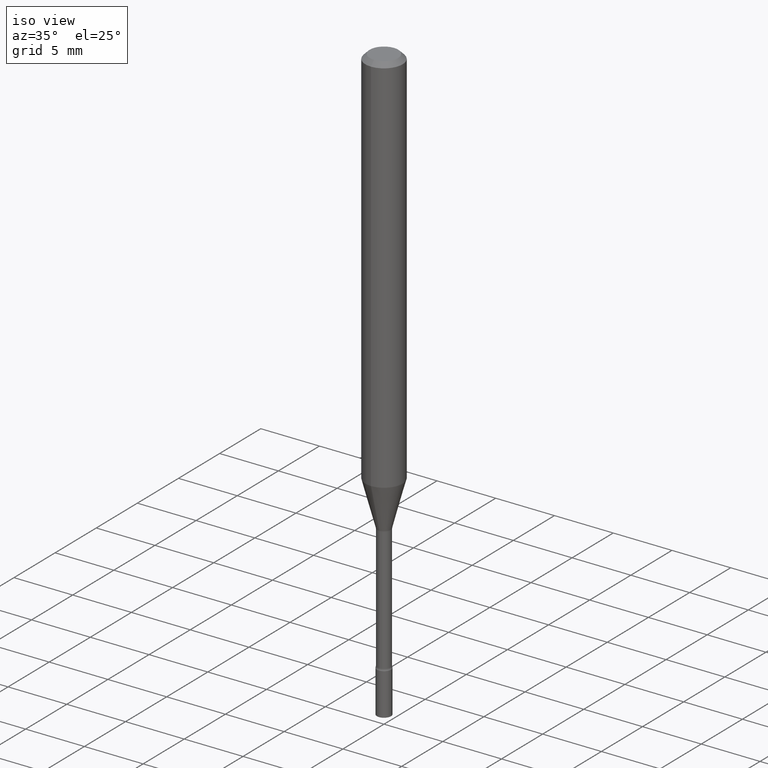
[diagram: clean part render]
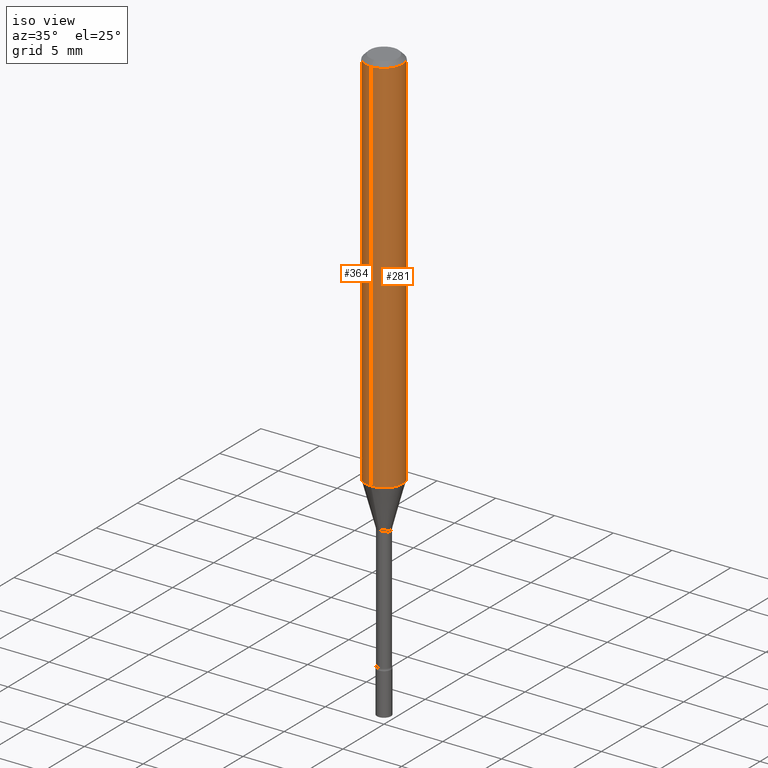
[diagram: same view with one multi-face feature highlighted, each face labeled with its STEP entity id]
A machine part, iso view. The highlighted faces form ONE feature: a constant-radius fillet chain: 2 tangent blend faces with common blend radius 1.5875 mm. The faces share edges in the B-rep.
Their STEP definitions:
[1] entity #281 (Cylinder):
#13 = DIRECTION ( 'NONE',  ( -2.445449293867179508E-29, 3.491509281593031965E-15, 1.000000000000000000 ) ) ;
#17 = DIRECTION ( 'NONE',  ( -2.445449293867179788E-29, 3.491509281593031965E-15, 1.000000000000000000 ) ) ;
#23 = ORIENTED_EDGE ( 'NONE', *, *, #407, .F. ) ;
#25 = DIRECTION ( 'NONE',  ( -6.982962677686265922E-15, -1.000000000000000000, 4.370956789862821150E-15 ) ) ;
#26 = DIRECTION ( 'NONE',  ( -6.982962677686265922E-15, -1.000000000000000000, 3.491509281593031965E-15 ) ) ;
#32 = DIRECTION ( 'NONE',  ( -2.445449293867179508E-29, 3.491509281593031965E-15, 1.000000000000000000 ) ) ;
#38 = VECTOR ( 'NONE', #13, 39.37007874015748143 ) ;
#45 = EDGE_CURVE ( 'NONE', #340, #299, #195, .T. ) ;
#59 = EDGE_CURVE ( 'NONE', #345, #340, #73, .T. ) ;
#60 = EDGE_CURVE ( 'NONE', #345, #390, #307, .T. ) ;
#71 = ORIENTED_EDGE ( 'NONE', *, *, #59, .T. ) ;
#73 = CIRCLE ( 'NONE', #426, 0.06250000000000000000 ) ;
#83 = DIRECTION ( 'NONE',  ( -2.445449293867179788E-29, 3.491509281593031965E-15, 1.000000000000000000 ) ) ;
#89 = DIRECTION ( 'NONE',  ( -2.445449293867179788E-29, 3.491509281593031965E-15, 1.000000000000000000 ) ) ;
#107 = ORIENTED_EDGE ( 'NONE', *, *, #45, .T. ) ;
#118 = CARTESIAN_POINT ( 'NONE',  ( -4.364351673553916201E-16, -0.06250000000000000000, 2.182193300995644978E-16 ) ) ;
#132 = CARTESIAN_POINT ( 'NONE',  ( 4.440892098500937762E-16, 0.06249999999999548278, -1.285225147374218224 ) ) ;
#137 = FACE_OUTER_BOUND ( 'NONE', #442, .T. ) ;
#168 = AXIS2_PLACEMENT_3D ( 'NONE', #502, #17, #26 ) ;
#179 = CARTESIAN_POINT ( 'NONE',  ( -4.364351673553912750E-16, -0.06250000000000005551, -0.01499999999999981209 ) ) ;
#195 = LINE ( 'NONE', #389, #494 ) ;
#203 = CARTESIAN_POINT ( 'NONE',  ( 3.142952929106623298E-29, -4.487375530993854275E-15, -1.285225147374218002 ) ) ;
#209 = CIRCLE ( 'NONE', #282, 0.06250000000000000000 ) ;
#214 = ORIENTED_EDGE ( 'NONE', *, *, #60, .F. ) ;
#252 = DIRECTION ( 'NONE',  ( -6.982962677686265922E-15, -1.000000000000000000, 3.483106191921935554E-15 ) ) ;
#281 = ADVANCED_FACE ( 'NONE', ( #137 ), #332, .T. ) ;
#282 = AXIS2_PLACEMENT_3D ( 'NONE', #508, #89, #252 ) ;
#299 = VERTEX_POINT ( 'NONE', #499 ) ;
#307 = LINE ( 'NONE', #118, #38 ) ;
#332 = CYLINDRICAL_SURFACE ( 'NONE', #168, 0.06250000000000000000 ) ;
#340 = VERTEX_POINT ( 'NONE', #132 ) ;
#345 = VERTEX_POINT ( 'NONE', #380 ) ;
#380 = CARTESIAN_POINT ( 'NONE',  ( -4.364351673553603615E-16, -0.06250000000000451028, -1.285225147374217780 ) ) ;
#389 = CARTESIAN_POINT ( 'NONE',  ( 4.440892098500625669E-16, 0.06250000000000000000, -2.182193300995644978E-16 ) ) ;
#390 = VERTEX_POINT ( 'NONE', #179 ) ;
#407 = EDGE_CURVE ( 'NONE', #390, #299, #209, .T. ) ;
#426 = AXIS2_PLACEMENT_3D ( 'NONE', #203, #83, #25 ) ;
#442 = EDGE_LOOP ( 'NONE', ( #71, #107, #23, #214 ) ) ;
#494 = VECTOR ( 'NONE', #32, 39.37007874015748143 ) ;
#499 = CARTESIAN_POINT ( 'NONE',  ( 4.440892098500941706E-16, 0.06249999999999995143, -0.01500000000000024751 ) ) ;
#502 = CARTESIAN_POINT ( 'NONE',  ( 0.000000000000000000, 0.000000000000000000, 0.000000000000000000 ) ) ;
#508 = CARTESIAN_POINT ( 'NONE',  ( 3.668173940800776741E-31, -5.237263922389558597E-17, -0.01500000000000003067 ) ) ;
[2] entity #364 (Cylinder):
#13 = DIRECTION ( 'NONE',  ( -2.445449293867179508E-29, 3.491509281593031965E-15, 1.000000000000000000 ) ) ;
#21 = DIRECTION ( 'NONE',  ( -6.982962677686265922E-15, -1.000000000000000000, 4.370956789862821150E-15 ) ) ;
#22 = DIRECTION ( 'NONE',  ( -6.982962677686265922E-15, -1.000000000000000000, 3.491509281593031965E-15 ) ) ;
#32 = DIRECTION ( 'NONE',  ( -2.445449293867179508E-29, 3.491509281593031965E-15, 1.000000000000000000 ) ) ;
#38 = VECTOR ( 'NONE', #13, 39.37007874015748143 ) ;
#45 = EDGE_CURVE ( 'NONE', #340, #299, #195, .T. ) ;
#47 = CARTESIAN_POINT ( 'NONE',  ( 3.668173940800776741E-31, -5.237263922389558597E-17, -0.01500000000000003067 ) ) ;
#48 = DIRECTION ( 'NONE',  ( -6.982962677686265922E-15, -1.000000000000000000, 3.483106191921935554E-15 ) ) ;
#60 = EDGE_CURVE ( 'NONE', #345, #390, #307, .T. ) ;
#64 = CYLINDRICAL_SURFACE ( 'NONE', #461, 0.06250000000000000000 ) ;
#67 = ORIENTED_EDGE ( 'NONE', *, *, #492, .T. ) ;
#111 = AXIS2_PLACEMENT_3D ( 'NONE', #212, #375, #21 ) ;
#115 = EDGE_CURVE ( 'NONE', #299, #390, #117, .T. ) ;
#117 = CIRCLE ( 'NONE', #413, 0.06250000000000000000 ) ;
#118 = CARTESIAN_POINT ( 'NONE',  ( -4.364351673553916201E-16, -0.06250000000000000000, 2.182193300995644978E-16 ) ) ;
#132 = CARTESIAN_POINT ( 'NONE',  ( 4.440892098500937762E-16, 0.06249999999999548278, -1.285225147374218224 ) ) ;
#138 = EDGE_LOOP ( 'NONE', ( #377, #67, #335, #154 ) ) ;
#154 = ORIENTED_EDGE ( 'NONE', *, *, #115, .F. ) ;
#179 = CARTESIAN_POINT ( 'NONE',  ( -4.364351673553912750E-16, -0.06250000000000005551, -0.01499999999999981209 ) ) ;
#195 = LINE ( 'NONE', #389, #494 ) ;
#199 = DIRECTION ( 'NONE',  ( -2.445449293867179788E-29, 3.491509281593031965E-15, 1.000000000000000000 ) ) ;
#212 = CARTESIAN_POINT ( 'NONE',  ( 3.142952929106623298E-29, -4.487375530993854275E-15, -1.285225147374218002 ) ) ;
#219 = DIRECTION ( 'NONE',  ( -2.445449293867179788E-29, 3.491509281593031965E-15, 1.000000000000000000 ) ) ;
#275 = CIRCLE ( 'NONE', #111, 0.06250000000000000000 ) ;
#299 = VERTEX_POINT ( 'NONE', #499 ) ;
#307 = LINE ( 'NONE', #118, #38 ) ;
#335 = ORIENTED_EDGE ( 'NONE', *, *, #60, .T. ) ;
#340 = VERTEX_POINT ( 'NONE', #132 ) ;
#342 = FACE_OUTER_BOUND ( 'NONE', #138, .T. ) ;
#345 = VERTEX_POINT ( 'NONE', #380 ) ;
#364 = ADVANCED_FACE ( 'NONE', ( #342 ), #64, .T. ) ;
#375 = DIRECTION ( 'NONE',  ( -2.445449293867179788E-29, 3.491509281593031965E-15, 1.000000000000000000 ) ) ;
#377 = ORIENTED_EDGE ( 'NONE', *, *, #45, .F. ) ;
#380 = CARTESIAN_POINT ( 'NONE',  ( -4.364351673553603615E-16, -0.06250000000000451028, -1.285225147374217780 ) ) ;
#389 = CARTESIAN_POINT ( 'NONE',  ( 4.440892098500625669E-16, 0.06250000000000000000, -2.182193300995644978E-16 ) ) ;
#390 = VERTEX_POINT ( 'NONE', #179 ) ;
#413 = AXIS2_PLACEMENT_3D ( 'NONE', #47, #199, #48 ) ;
#461 = AXIS2_PLACEMENT_3D ( 'NONE', #463, #219, #22 ) ;
#463 = CARTESIAN_POINT ( 'NONE',  ( 0.000000000000000000, 0.000000000000000000, 0.000000000000000000 ) ) ;
#492 = EDGE_CURVE ( 'NONE', #340, #345, #275, .T. ) ;
#494 = VECTOR ( 'NONE', #32, 39.37007874015748143 ) ;
#499 = CARTESIAN_POINT ( 'NONE',  ( 4.440892098500941706E-16, 0.06249999999999995143, -0.01500000000000024751 ) ) ;